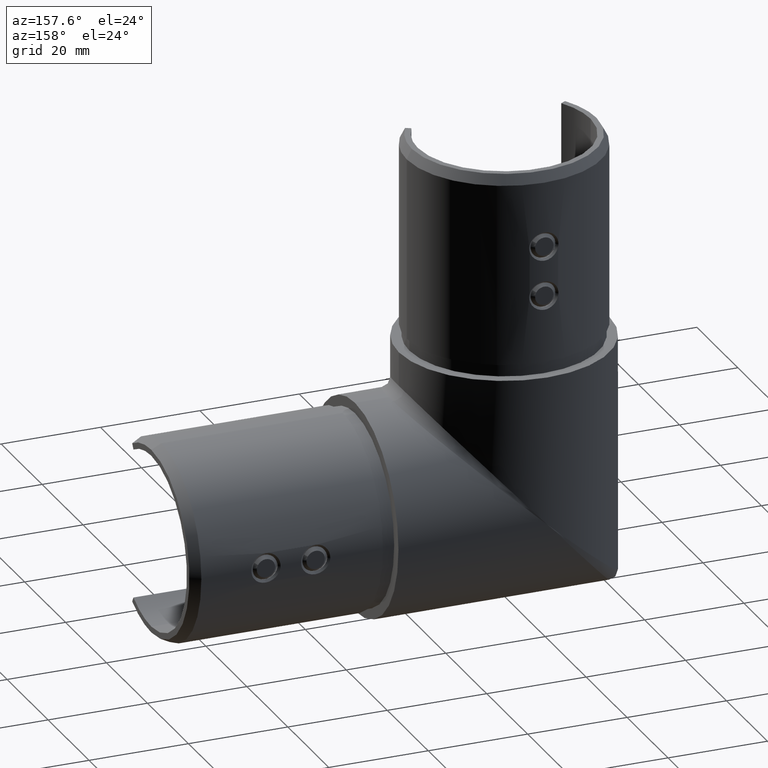
[diagram: clean part render]
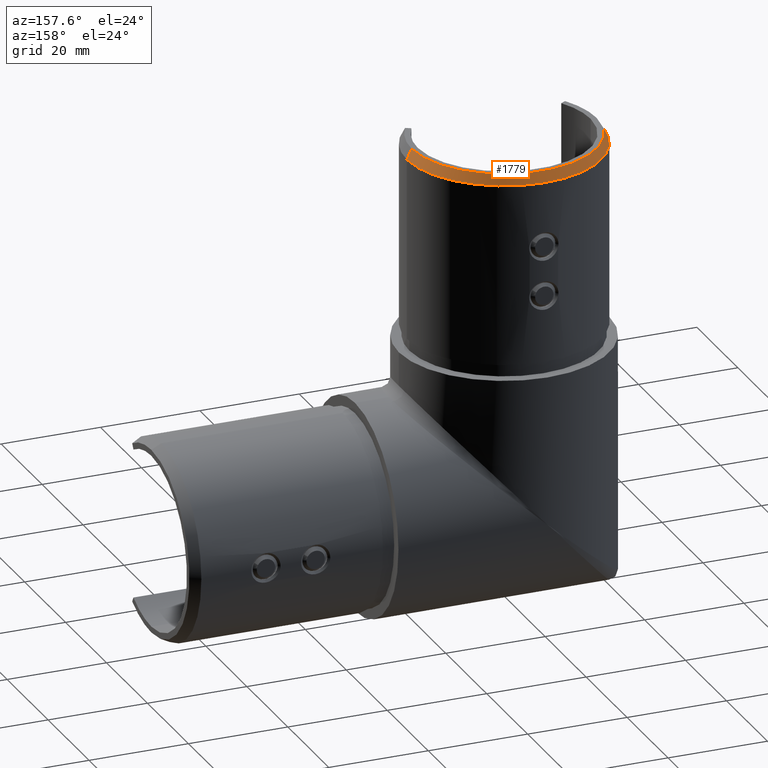
[diagram: same view with one face highlighted and labeled with its STEP entity id]
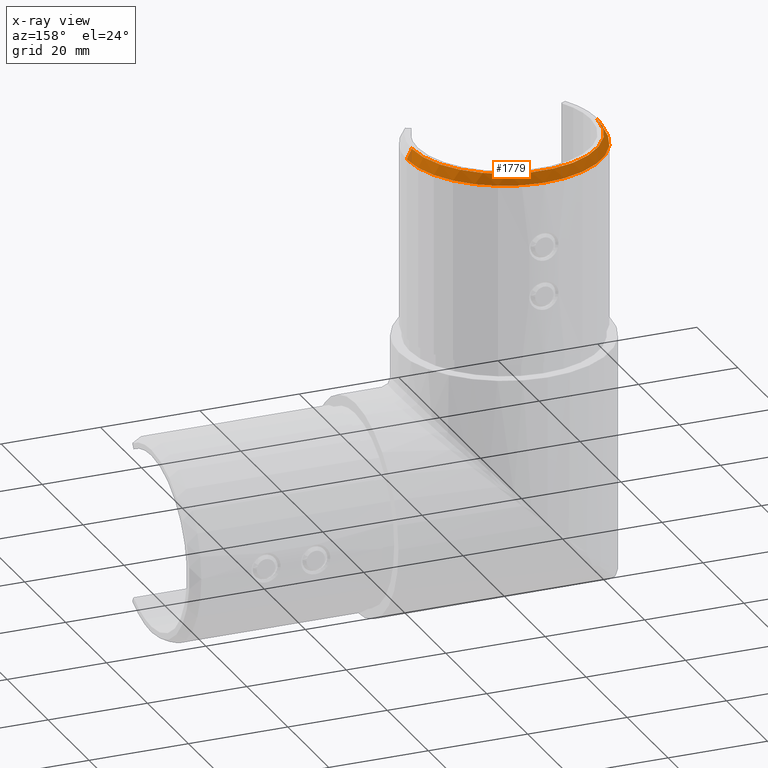
[diagram: x-ray of the same camera — body ghosted, the highlighted face saturated]
A machine part, auxiliary view. The second image highlights one B-rep face of the part: STEP entity #1779.
The next image is the same camera in x-ray: the body ghosted, the highlighted face saturated — about 0% of this face is hidden behind the body in this view.
In plain terms, the highlighted conical surface has half-angle 26.565 deg.
Its self-contained STEP definition (entity closure, byte-faithful):
#281 = CIRCLE ( 'NONE', #1992, 18.60000000000000500 ) ;
#360 = VERTEX_POINT ( 'NONE', #9863 ) ;
#418 = ORIENTED_EDGE ( 'NONE', *, *, #1396, .F. ) ;
#464 = EDGE_LOOP ( 'NONE', ( #10592, #7006, #418, #8212 ) ) ;
#1332 = CARTESIAN_POINT ( 'NONE',  ( 0.0000000000000000000, 0.0000000000000000000, 71.00000000000001400 ) ) ;
#1347 = CARTESIAN_POINT ( 'NONE',  ( 19.60000000000000100, 2.400307726328812700E-015, 69.00000000000000000 ) ) ;
#1396 = EDGE_CURVE ( 'NONE', #17854, #5768, #19491, .T. ) ;
#1779 = ADVANCED_FACE ( 'NONE', ( #4252 ), #7904, .T. ) ;
#1992 = AXIS2_PLACEMENT_3D ( 'NONE', #1332, #5918, #6053 ) ;
#2570 = CARTESIAN_POINT ( 'NONE',  ( -18.60000000000000500, 0.0000000000000000000, 71.00000000000001400 ) ) ;
#3734 = VECTOR ( 'NONE', #19908, 1000.000000000000200 ) ;
#4252 = FACE_OUTER_BOUND ( 'NONE', #464, .T. ) ;
#4605 = DIRECTION ( 'NONE',  ( 0.0000000000000000000, 0.0000000000000000000, -1.000000000000000000 ) ) ;
#4765 = AXIS2_PLACEMENT_3D ( 'NONE', #9134, #4605, #12283 ) ;
#4785 = LINE ( 'NONE', #10209, #17059 ) ;
#5768 = VERTEX_POINT ( 'NONE', #1347 ) ;
#5918 = DIRECTION ( 'NONE',  ( 0.0000000000000000000, 0.0000000000000000000, 1.000000000000000000 ) ) ;
#6053 = DIRECTION ( 'NONE',  ( 1.000000000000000000, 0.0000000000000000000, 0.0000000000000000000 ) ) ;
#7006 = ORIENTED_EDGE ( 'NONE', *, *, #8897, .T. ) ;
#7904 = CONICAL_SURFACE ( 'NONE', #4765, 18.60000000000000500, 0.4636476090008046500 ) ;
#8212 = ORIENTED_EDGE ( 'NONE', *, *, #12050, .F. ) ;
#8428 = DIRECTION ( 'NONE',  ( 0.4472135954999566500, 5.476786982642010800E-017, -0.8944271909999164100 ) ) ;
#8897 = EDGE_CURVE ( 'NONE', #11624, #5768, #4785, .T. ) ;
#9134 = CARTESIAN_POINT ( 'NONE',  ( 0.0000000000000000000, 0.0000000000000000000, 71.00000000000001400 ) ) ;
#9855 = LINE ( 'NONE', #2570, #3734 ) ;
#9863 = CARTESIAN_POINT ( 'NONE',  ( -18.60000000000000500, 0.0000000000000000000, 71.00000000000001400 ) ) ;
#10209 = CARTESIAN_POINT ( 'NONE',  ( 18.60000000000000500, 2.277843046414077500E-015, 71.00000000000001400 ) ) ;
#10421 = AXIS2_PLACEMENT_3D ( 'NONE', #20018, #18612, #15332 ) ;
#10592 = ORIENTED_EDGE ( 'NONE', *, *, #12860, .F. ) ;
#11624 = VERTEX_POINT ( 'NONE', #17272 ) ;
#12050 = EDGE_CURVE ( 'NONE', #360, #17854, #9855, .T. ) ;
#12283 = DIRECTION ( 'NONE',  ( -1.000000000000000000, 0.0000000000000000000, 0.0000000000000000000 ) ) ;
#12860 = EDGE_CURVE ( 'NONE', #11624, #360, #281, .T. ) ;
#14457 = CARTESIAN_POINT ( 'NONE',  ( -19.60000000000000100, 0.0000000000000000000, 69.00000000000000000 ) ) ;
#15332 = DIRECTION ( 'NONE',  ( 1.000000000000000000, 0.0000000000000000000, 0.0000000000000000000 ) ) ;
#17059 = VECTOR ( 'NONE', #8428, 1000.000000000000200 ) ;
#17272 = CARTESIAN_POINT ( 'NONE',  ( 18.60000000000000500, 2.339075386371445100E-015, 71.00000000000001400 ) ) ;
#17854 = VERTEX_POINT ( 'NONE', #14457 ) ;
#18612 = DIRECTION ( 'NONE',  ( 0.0000000000000000000, 0.0000000000000000000, -1.000000000000000000 ) ) ;
#19491 = CIRCLE ( 'NONE', #10421, 19.60000000000000100 ) ;
#19908 = DIRECTION ( 'NONE',  ( -0.4472135954999566500, 0.0000000000000000000, -0.8944271909999164100 ) ) ;
#20018 = CARTESIAN_POINT ( 'NONE',  ( 0.0000000000000000000, 0.0000000000000000000, 69.00000000000000000 ) ) ;